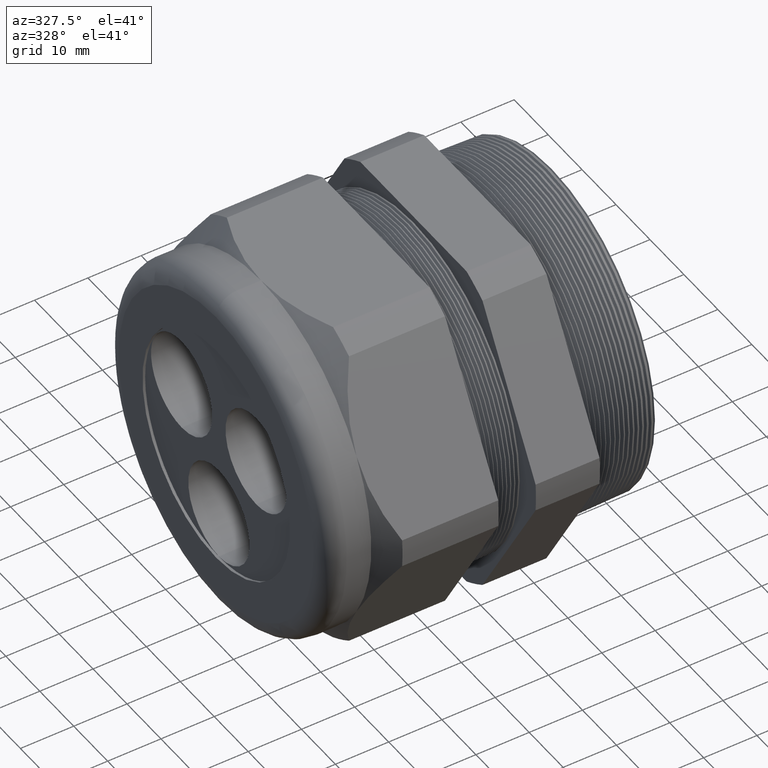
[diagram: clean part render]
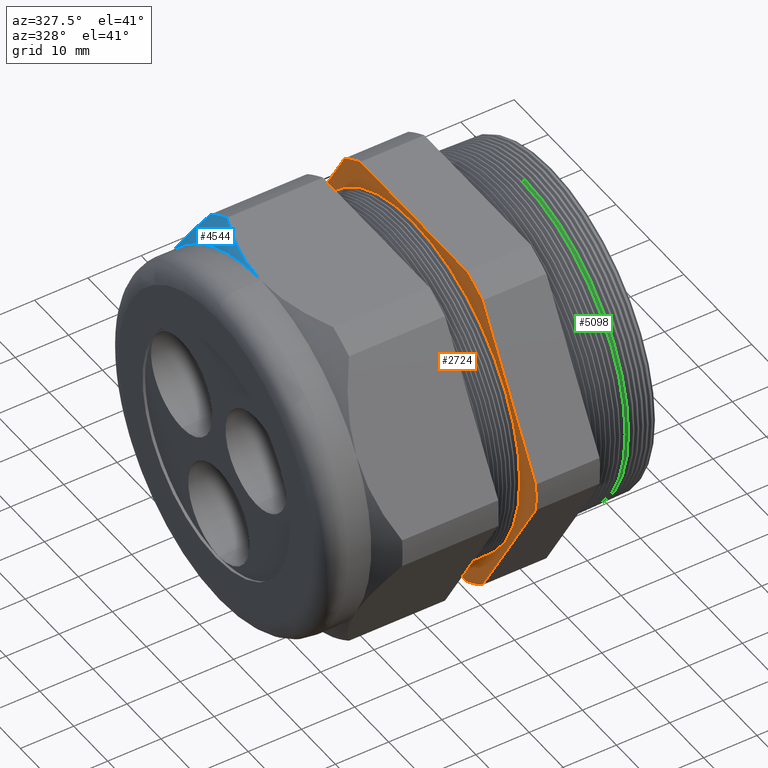
[diagram: same view with three faces highlighted in distinct colors, each labeled with its STEP entity id]
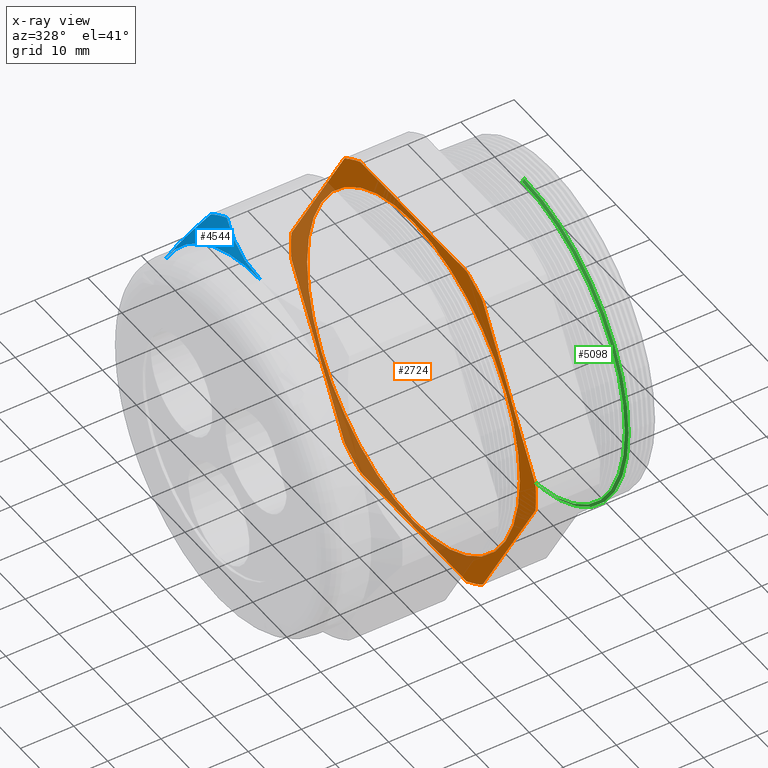
[diagram: x-ray of the same camera — body ghosted, the three highlighted faces saturated]
A machine part, auxiliary view with three faces highlighted in distinct colors.
The next image is the same camera in x-ray (body ghosted, the three faces saturated) — at least one of them is partly hidden behind the body in this view.
Their STEP definitions:

[orange] entity #2724 — the highlighted planar face has unit normal (-1, 0, 0).
#373 = ORIENTED_EDGE ( 'NONE', *, *, #4996, .T. ) ;
#386 = ORIENTED_EDGE ( 'NONE', *, *, #4957, .T. ) ;
#1143 = DIRECTION ( 'NONE',  ( 0.0000000000000000000, 0.0000000000000000000, 1.000000000000000000 ) ) ;
#1144 = DIRECTION ( 'NONE',  ( -1.000000000000000000, 0.0000000000000000000, 0.0000000000000000000 ) ) ;
#1145 = CARTESIAN_POINT ( 'NONE',  ( -0.7824400000000001400, 2.560000000000000100, 0.0000000000000000000 ) ) ;
#1146 = AXIS2_PLACEMENT_3D ( 'NONE', #1145, #1144, #1143 ) ;
#1147 = PLANE ( 'NONE',  #1146 ) ;
#1148 = FACE_OUTER_BOUND ( 'NONE', #1701, .T. ) ;
#1149 = FACE_BOUND ( 'NONE', #2185, .T. ) ;
#1271 = ORIENTED_EDGE ( 'NONE', *, *, #5229, .T. ) ;
#1646 = ORIENTED_EDGE ( 'NONE', *, *, #5273, .T. ) ;
#1701 = EDGE_LOOP ( 'NONE', ( #1646, #1271, #386, #373, #4523, #4526, #4529, #4527, #4521, #4519, #4517, #4518 ) ) ;
#2116 = CARTESIAN_POINT ( 'NONE',  ( -0.7824399999999999100, 1.509880605217353400E-016, -1.232763185394561100 ) ) ;
#2134 = CARTESIAN_POINT ( 'NONE',  ( -0.7824399999999999100, 0.0000000000000000000, 1.232763185394561100 ) ) ;
#2151 = ORIENTED_EDGE ( 'NONE', *, *, #4608, .T. ) ;
#2185 = EDGE_LOOP ( 'NONE', ( #2188, #2151 ) ) ;
#2188 = ORIENTED_EDGE ( 'NONE', *, *, #5320, .T. ) ;
#2202 = DIRECTION ( 'NONE',  ( 0.0000000000000000000, 0.0000000000000000000, -1.000000000000000000 ) ) ;
#2203 = DIRECTION ( 'NONE',  ( 1.000000000000000000, 0.0000000000000000000, 0.0000000000000000000 ) ) ;
#2204 = CARTESIAN_POINT ( 'NONE',  ( -0.7824399999999999100, 0.0000000000000000000, 0.0000000000000000000 ) ) ;
#2205 = AXIS2_PLACEMENT_3D ( 'NONE', #2204, #2203, #2202 ) ;
#2206 = CIRCLE ( 'NONE', #2205, 1.232763185394561100 ) ;
#2724 = ADVANCED_FACE ( 'NONE', ( #1149, #1148 ), #1147, .T. ) ;
#2745 = CARTESIAN_POINT ( 'NONE',  ( -0.7824400000000001400, -0.6166625008868302800, -1.280000000000000000 ) ) ;
#2750 = CARTESIAN_POINT ( 'NONE',  ( -0.7824400000000001400, 0.6166625008868305000, -1.279999999999999800 ) ) ;
#2796 = CARTESIAN_POINT ( 'NONE',  ( -0.7824400000000001400, 1.416843767287496500, -0.1059546086707606900 ) ) ;
#2807 = DIRECTION ( 'NONE',  ( 0.0000000000000000000, -1.000000000000000000, 0.0000000000000000000 ) ) ;
#2808 = VECTOR ( 'NONE', #2807, 39.37007874015748100 ) ;
#2809 = CARTESIAN_POINT ( 'NONE',  ( -0.7824400000000001400, 2.560000000000000100, -1.280000000000000000 ) ) ;
#2810 = LINE ( 'NONE', #2809, #2808 ) ;
#2844 = DIRECTION ( 'NONE',  ( 0.0000000000000000000, -0.4999999999999998300, -0.8660254037844388200 ) ) ;
#2845 = VECTOR ( 'NONE', #2844, 39.37007874015748100 ) ;
#2846 = CARTESIAN_POINT ( 'NONE',  ( -0.7824400000000001400, 1.748512516844080900, 0.4685125168440814600 ) ) ;
#2852 = LINE ( 'NONE', #2846, #2845 ) ;
#2853 = CARTESIAN_POINT ( 'NONE',  ( -0.7824400000000001400, 0.8001812664006662200, -1.174045391329238800 ) ) ;
#2898 = DIRECTION ( 'NONE',  ( 0.0000000000000000000, 0.0000000000000000000, 1.000000000000000000 ) ) ;
#2899 = DIRECTION ( 'NONE',  ( -1.000000000000000000, 0.0000000000000000000, 0.0000000000000000000 ) ) ;
#2900 = CARTESIAN_POINT ( 'NONE',  ( -0.7824400000000001400, 0.0000000000000000000, 0.0000000000000000000 ) ) ;
#2901 = AXIS2_PLACEMENT_3D ( 'NONE', #2900, #2899, #2898 ) ;
#2906 = CIRCLE ( 'NONE', #2901, 1.420799999999999800 ) ;
#3207 = DIRECTION ( 'NONE',  ( 0.0000000000000000000, -0.5000000000000000000, 0.8660254037844386000 ) ) ;
#3208 = VECTOR ( 'NONE', #3207, 39.37007874015748100 ) ;
#3209 = CARTESIAN_POINT ( 'NONE',  ( -0.7824400000000001400, -0.4685125168440810200, -1.748512516844081400 ) ) ;
#3210 = LINE ( 'NONE', #3209, #3208 ) ;
#3230 = CARTESIAN_POINT ( 'NONE',  ( -0.7824400000000001400, -1.416843767287496500, -0.1059546086707604700 ) ) ;
#3233 = CARTESIAN_POINT ( 'NONE',  ( -0.7824400000000001400, -0.8001812664006662200, 1.174045391329239200 ) ) ;
#3244 = DIRECTION ( 'NONE',  ( 0.0000000000000000000, 0.4999999999999994400, 0.8660254037844389300 ) ) ;
#3245 = VECTOR ( 'NONE', #3244, 39.37007874015748100 ) ;
#3246 = CARTESIAN_POINT ( 'NONE',  ( -0.7824400000000001400, -0.4685125168440826300, 1.748512516844079600 ) ) ;
#3247 = LINE ( 'NONE', #3246, #3245 ) ;
#3248 = DIRECTION ( 'NONE',  ( 0.0000000000000000000, 0.0000000000000000000, 1.000000000000000000 ) ) ;
#3249 = DIRECTION ( 'NONE',  ( -1.000000000000000000, 0.0000000000000000000, 0.0000000000000000000 ) ) ;
#3250 = CARTESIAN_POINT ( 'NONE',  ( -0.7824400000000001400, 0.0000000000000000000, 0.0000000000000000000 ) ) ;
#3251 = AXIS2_PLACEMENT_3D ( 'NONE', #3250, #3249, #3248 ) ;
#3252 = CIRCLE ( 'NONE', #3251, 1.420799999999999800 ) ;
#3253 = CARTESIAN_POINT ( 'NONE',  ( -0.7824400000000001400, -1.416843767287496500, 0.1059546086707598600 ) ) ;
#3271 = DIRECTION ( 'NONE',  ( 0.0000000000000000000, 0.0000000000000000000, 1.000000000000000000 ) ) ;
#3272 = DIRECTION ( 'NONE',  ( -1.000000000000000000, 0.0000000000000000000, 0.0000000000000000000 ) ) ;
#3273 = CARTESIAN_POINT ( 'NONE',  ( -0.7824400000000001400, 0.0000000000000000000, 0.0000000000000000000 ) ) ;
#3274 = AXIS2_PLACEMENT_3D ( 'NONE', #3273, #3272, #3271 ) ;
#3275 = CIRCLE ( 'NONE', #3274, 1.420799999999999800 ) ;
#3315 = DIRECTION ( 'NONE',  ( 0.0000000000000000000, 0.0000000000000000000, 1.000000000000000000 ) ) ;
#3316 = DIRECTION ( 'NONE',  ( -1.000000000000000000, 0.0000000000000000000, 0.0000000000000000000 ) ) ;
#3317 = CARTESIAN_POINT ( 'NONE',  ( -0.7824400000000001400, 0.0000000000000000000, 0.0000000000000000000 ) ) ;
#3318 = AXIS2_PLACEMENT_3D ( 'NONE', #3317, #3316, #3315 ) ;
#3319 = CIRCLE ( 'NONE', #3318, 1.420799999999999800 ) ;
#3321 = CARTESIAN_POINT ( 'NONE',  ( -0.7824400000000001400, 0.6166625008868301700, 1.280000000000000000 ) ) ;
#3322 = CARTESIAN_POINT ( 'NONE',  ( -0.7824400000000001400, -0.6166625008868306100, 1.279999999999999800 ) ) ;
#3341 = DIRECTION ( 'NONE',  ( 0.0000000000000000000, 1.000000000000000000, 0.0000000000000000000 ) ) ;
#3342 = VECTOR ( 'NONE', #3341, 39.37007874015748100 ) ;
#3343 = CARTESIAN_POINT ( 'NONE',  ( -0.7824400000000001400, 2.560000000000000100, 1.280000000000000000 ) ) ;
#3344 = LINE ( 'NONE', #3343, #3342 ) ;
#3345 = CARTESIAN_POINT ( 'NONE',  ( -0.7824400000000001400, 0.8001812664006661100, 1.174045391329238800 ) ) ;
#3346 = DIRECTION ( 'NONE',  ( 0.0000000000000000000, 0.0000000000000000000, 1.000000000000000000 ) ) ;
#3347 = DIRECTION ( 'NONE',  ( -1.000000000000000000, 0.0000000000000000000, 0.0000000000000000000 ) ) ;
#3348 = CARTESIAN_POINT ( 'NONE',  ( -0.7824400000000001400, 0.0000000000000000000, 0.0000000000000000000 ) ) ;
#3349 = AXIS2_PLACEMENT_3D ( 'NONE', #3348, #3347, #3346 ) ;
#3350 = CIRCLE ( 'NONE', #3349, 1.420800000000000100 ) ;
#3405 = DIRECTION ( 'NONE',  ( 0.0000000000000000000, 0.4999999999999998900, -0.8660254037844386000 ) ) ;
#3406 = VECTOR ( 'NONE', #3405, 39.37007874015748900 ) ;
#3407 = CARTESIAN_POINT ( 'NONE',  ( -0.7824400000000001400, 1.748512516844080900, -0.4685125168440816300 ) ) ;
#3408 = LINE ( 'NONE', #3407, #3406 ) ;
#3411 = CARTESIAN_POINT ( 'NONE',  ( -0.7824400000000001400, 1.416843767287496500, 0.1059546086707610400 ) ) ;
#3460 = CARTESIAN_POINT ( 'NONE',  ( -0.7824399999999999100, 0.0000000000000000000, 0.0000000000000000000 ) ) ;
#3516 = DIRECTION ( 'NONE',  ( 0.0000000000000000000, 0.0000000000000000000, -1.000000000000000000 ) ) ;
#3517 = DIRECTION ( 'NONE',  ( 1.000000000000000000, 0.0000000000000000000, 0.0000000000000000000 ) ) ;
#3518 = AXIS2_PLACEMENT_3D ( 'NONE', #3460, #3517, #3516 ) ;
#3519 = CIRCLE ( 'NONE', #3518, 1.232763185394561100 ) ;
#3603 = CARTESIAN_POINT ( 'NONE',  ( -0.7824400000000001400, -0.8001812664006651100, -1.174045391329239900 ) ) ;
#3640 = DIRECTION ( 'NONE',  ( 0.0000000000000000000, 0.0000000000000000000, 1.000000000000000000 ) ) ;
#3641 = DIRECTION ( 'NONE',  ( -1.000000000000000000, 0.0000000000000000000, 0.0000000000000000000 ) ) ;
#3642 = CARTESIAN_POINT ( 'NONE',  ( -0.7824400000000001400, 0.0000000000000000000, 0.0000000000000000000 ) ) ;
#3643 = AXIS2_PLACEMENT_3D ( 'NONE', #3642, #3641, #3640 ) ;
#3644 = CIRCLE ( 'NONE', #3643, 1.420800000000000100 ) ;
#4517 = ORIENTED_EDGE ( 'NONE', *, *, #5232, .T. ) ;
#4518 = ORIENTED_EDGE ( 'NONE', *, *, #5213, .T. ) ;
#4519 = ORIENTED_EDGE ( 'NONE', *, *, #5201, .T. ) ;
#4521 = ORIENTED_EDGE ( 'NONE', *, *, #5172, .T. ) ;
#4523 = ORIENTED_EDGE ( 'NONE', *, *, #4942, .T. ) ;
#4526 = ORIENTED_EDGE ( 'NONE', *, *, #5393, .T. ) ;
#4527 = ORIENTED_EDGE ( 'NONE', *, *, #5171, .T. ) ;
#4529 = ORIENTED_EDGE ( 'NONE', *, *, #5157, .T. ) ;
#4558 = VERTEX_POINT ( 'NONE', #2134 ) ;
#4571 = VERTEX_POINT ( 'NONE', #2116 ) ;
#4608 = EDGE_CURVE ( 'NONE', #4571, #4558, #2206, .T. ) ;
#4907 = VERTEX_POINT ( 'NONE', #2750 ) ;
#4909 = VERTEX_POINT ( 'NONE', #2745 ) ;
#4942 = EDGE_CURVE ( 'NONE', #4907, #4909, #2810, .T. ) ;
#4948 = VERTEX_POINT ( 'NONE', #2796 ) ;
#4951 = VERTEX_POINT ( 'NONE', #2853 ) ;
#4957 = EDGE_CURVE ( 'NONE', #4948, #4951, #2852, .T. ) ;
#4996 = EDGE_CURVE ( 'NONE', #4951, #4907, #2906, .T. ) ;
#5157 = EDGE_CURVE ( 'NONE', #5378, #5178, #3210, .T. ) ;
#5167 = VERTEX_POINT ( 'NONE', #3253 ) ;
#5171 = EDGE_CURVE ( 'NONE', #5178, #5167, #3252, .T. ) ;
#5172 = EDGE_CURVE ( 'NONE', #5167, #5183, #3247, .T. ) ;
#5178 = VERTEX_POINT ( 'NONE', #3230 ) ;
#5183 = VERTEX_POINT ( 'NONE', #3233 ) ;
#5201 = EDGE_CURVE ( 'NONE', #5183, #5209, #3275, .T. ) ;
#5209 = VERTEX_POINT ( 'NONE', #3322 ) ;
#5211 = VERTEX_POINT ( 'NONE', #3321 ) ;
#5213 = EDGE_CURVE ( 'NONE', #5211, #5231, #3319, .T. ) ;
#5229 = EDGE_CURVE ( 'NONE', #5269, #4948, #3350, .T. ) ;
#5231 = VERTEX_POINT ( 'NONE', #3345 ) ;
#5232 = EDGE_CURVE ( 'NONE', #5209, #5211, #3344, .T. ) ;
#5269 = VERTEX_POINT ( 'NONE', #3411 ) ;
#5273 = EDGE_CURVE ( 'NONE', #5231, #5269, #3408, .T. ) ;
#5320 = EDGE_CURVE ( 'NONE', #4558, #4571, #3519, .T. ) ;
#5378 = VERTEX_POINT ( 'NONE', #3603 ) ;
#5393 = EDGE_CURVE ( 'NONE', #4909, #5378, #3644, .T. ) ;

[blue] entity #4544 — the highlighted conical surface has half-angle 45 deg.
#1164 = DIRECTION ( 'NONE',  ( 0.0000000000000000000, 0.0000000000000000000, -1.000000000000000000 ) ) ;
#1165 = DIRECTION ( 'NONE',  ( 1.000000000000000000, 0.0000000000000000000, 0.0000000000000000000 ) ) ;
#1166 = CARTESIAN_POINT ( 'NONE',  ( -1.768492000000000200, 0.0000000000000000000, 0.0000000000000000000 ) ) ;
#1167 = AXIS2_PLACEMENT_3D ( 'NONE', #1166, #1165, #1164 ) ;
#1172 = CIRCLE ( 'NONE', #1167, 1.420799999999999800 ) ;
#1240 = CARTESIAN_POINT ( 'NONE',  ( -1.909291999999999500, 0.0000000000000000000, 1.280000000000000000 ) ) ;
#1241 = CARTESIAN_POINT ( 'NONE',  ( -1.909291999999999500, 0.02672213078802234200, 1.280000000000000000 ) ) ;
#1242 = CARTESIAN_POINT ( 'NONE',  ( -1.908446342151620900, 0.05356854984720004600, 1.280000000000000000 ) ) ;
#1243 = CARTESIAN_POINT ( 'NONE',  ( -1.905123383299628200, 0.1067381207527689800, 1.280000000000000000 ) ) ;
#1244 = CARTESIAN_POINT ( 'NONE',  ( -1.902648074829802000, 0.1331626350846556200, 1.280000000000000000 ) ) ;
#1245 = CARTESIAN_POINT ( 'NONE',  ( -1.892905966014041500, 0.2119800413602719000, 1.279999999999999800 ) ) ;
#1246 = CARTESIAN_POINT ( 'NONE',  ( -1.883320795785701900, 0.2639163659910923100, 1.279999999999999800 ) ) ;
#1247 = CARTESIAN_POINT ( 'NONE',  ( -1.858730573868090800, 0.3667216529074577300, 1.279999999999999800 ) ) ;
#1248 = CARTESIAN_POINT ( 'NONE',  ( -1.843728725011120500, 0.4175912459415935300, 1.279999999999999800 ) ) ;
#1249 = CARTESIAN_POINT ( 'NONE',  ( -1.817760468264914900, 0.4932131617928015000, 1.279999999999999800 ) ) ;
#1250 = CARTESIAN_POINT ( 'NONE',  ( -1.808517794523389500, 0.5183220260809854300, 1.279999999999999800 ) ) ;
#1251 = CARTESIAN_POINT ( 'NONE',  ( -1.789160968299050800, 0.5678795841928971900, 1.280000000000000000 ) ) ;
#1252 = CARTESIAN_POINT ( 'NONE',  ( -1.779027095716830800, 0.5923894763832372500, 1.280000000000000000 ) ) ;
#1253 = CARTESIAN_POINT ( 'NONE',  ( -1.768492000000000000, 0.6166625008868301700, 1.280000000000000000 ) ) ;
#1255 = B_SPLINE_CURVE_WITH_KNOTS ( 'NONE', 3,
 ( #1253, #1252, #1251, #1250, #1249, #1248, #1247, #1246, #1245, #1244, #1243, #1242, #1241, #1240 ),
 .UNSPECIFIED., .F., .F.,
 ( 4, 2, 2, 2, 2, 2, 4 ),
 ( 0.02514202277783124400, 0.02714289194006080900, 0.02914376110229037100, 0.03314549942674950600, 0.03714723775120863700, 0.03914810691343820200, 0.04114897607566777400 ),
 .UNSPECIFIED. ) ;
#1279 = CARTESIAN_POINT ( 'NONE',  ( -1.768492000000000000, 0.6166625008868301700, 1.280000000000000000 ) ) ;
#2078 = DIRECTION ( 'NONE',  ( 0.0000000000000000000, 0.0000000000000000000, 1.000000000000000000 ) ) ;
#2079 = DIRECTION ( 'NONE',  ( 1.000000000000000000, 0.0000000000000000000, 0.0000000000000000000 ) ) ;
#2080 = AXIS2_PLACEMENT_3D ( 'NONE', #2087, #2079, #2078 ) ;
#2081 = CONICAL_SURFACE ( 'NONE', #2080, 1.280000000000000000, 0.7853981633974501700 ) ;
#2082 = FACE_OUTER_BOUND ( 'NONE', #4545, .T. ) ;
#2087 = CARTESIAN_POINT ( 'NONE',  ( -1.909291999999999500, 0.0000000000000000000, 0.0000000000000000000 ) ) ;
#2231 = CARTESIAN_POINT ( 'NONE',  ( -1.909291999999999500, 0.0000000000000000000, 1.280000000000000000 ) ) ;
#2264 = CARTESIAN_POINT ( 'NONE',  ( -1.909291999999999500, 1.108512516844081500, 0.6400000000000000100 ) ) ;
#2301 = DIRECTION ( 'NONE',  ( 0.0000000000000000000, 0.0000000000000000000, -1.000000000000000000 ) ) ;
#2302 = DIRECTION ( 'NONE',  ( 1.000000000000000000, 0.0000000000000000000, 0.0000000000000000000 ) ) ;
#2303 = CARTESIAN_POINT ( 'NONE',  ( -1.909291999999999500, 0.0000000000000000000, 0.0000000000000000000 ) ) ;
#2304 = AXIS2_PLACEMENT_3D ( 'NONE', #2303, #2302, #2301 ) ;
#2305 = CIRCLE ( 'NONE', #2304, 1.279999999999999800 ) ;
#3045 = CARTESIAN_POINT ( 'NONE',  ( -1.859065044692606900, 0.9257579459085123500, 0.9565402021758557800 ) ) ;
#3046 = CARTESIAN_POINT ( 'NONE',  ( -1.895822934946115300, 1.002877599663059000, 0.8229650436108604300 ) ) ;
#3047 = CARTESIAN_POINT ( 'NONE',  ( -1.909291999999998700, 1.055162852598234600, 0.7324043290405472000 ) ) ;
#3048 = CARTESIAN_POINT ( 'NONE',  ( -1.909291999999999500, 1.108512516844081500, 0.6400000000000000100 ) ) ;
#3051 = B_SPLINE_CURVE_WITH_KNOTS ( 'NONE', 3,
 ( #3048, #3047, #3046, #3045, #3108, #3107, #3106, #3105 ),
 .UNSPECIFIED., .F., .F.,
 ( 4, 2, 2, 4 ),
 ( 0.01607611893436946400, 0.02410854275338653000, 0.02812475466289506400, 0.03214096657240359700 ),
 .UNSPECIFIED. ) ;
#3052 = CARTESIAN_POINT ( 'NONE',  ( -1.768492000000000200, 0.8001812664006661100, 1.174045391329238800 ) ) ;
#3105 = CARTESIAN_POINT ( 'NONE',  ( -1.768492000000000200, 0.8001812664006661100, 1.174045391329238800 ) ) ;
#3106 = CARTESIAN_POINT ( 'NONE',  ( -1.789807280376754400, 0.8247366352740291800, 1.131514244841979000 ) ) ;
#3107 = CARTESIAN_POINT ( 'NONE',  ( -1.809379497512201500, 0.8496599179459881600, 1.088345852962745400 ) ) ;
#3108 = CARTESIAN_POINT ( 'NONE',  ( -1.844076898263659100, 0.9002675725821838200, 1.000690823880955800 ) ) ;
#4053 = EDGE_CURVE ( 'NONE', #5072, #4087, #1172, .T. ) ;
#4076 = EDGE_CURVE ( 'NONE', #4087, #4629, #1255, .T. ) ;
#4087 = VERTEX_POINT ( 'NONE', #1279 ) ;
#4544 = ADVANCED_FACE ( 'NONE', ( #2082 ), #2081, .T. ) ;
#4545 = EDGE_LOOP ( 'NONE', ( #4575, #4576, #4572, #4573 ) ) ;
#4572 = ORIENTED_EDGE ( 'NONE', *, *, #4053, .F. ) ;
#4573 = ORIENTED_EDGE ( 'NONE', *, *, #5075, .F. ) ;
#4575 = ORIENTED_EDGE ( 'NONE', *, *, #4656, .T. ) ;
#4576 = ORIENTED_EDGE ( 'NONE', *, *, #4076, .F. ) ;
#4629 = VERTEX_POINT ( 'NONE', #2231 ) ;
#4644 = VERTEX_POINT ( 'NONE', #2264 ) ;
#4656 = EDGE_CURVE ( 'NONE', #4644, #4629, #2305, .T. ) ;
#5072 = VERTEX_POINT ( 'NONE', #3052 ) ;
#5075 = EDGE_CURVE ( 'NONE', #4644, #5072, #3051, .T. ) ;

[green] entity #5098 — the highlighted conical surface has half-angle 58.5 deg.
#183 = EDGE_CURVE ( 'NONE', #4674, #295, #721, .T. ) ;
#288 = EDGE_CURVE ( 'NONE', #4669, #4674, #875, .T. ) ;
#295 = VERTEX_POINT ( 'NONE', #924 ) ;
#296 = EDGE_CURVE ( 'NONE', #298, #295, #923, .T. ) ;
#298 = VERTEX_POINT ( 'NONE', #919 ) ;
#622 = CARTESIAN_POINT ( 'NONE',  ( 0.02152926432092473800, 0.0000000000000000000, -1.189948790814587800 ) ) ;
#717 = DIRECTION ( 'NONE',  ( 0.0000000000000000000, 0.0000000000000000000, -1.000000000000000000 ) ) ;
#718 = DIRECTION ( 'NONE',  ( -1.000000000000000000, 0.0000000000000000000, 0.0000000000000000000 ) ) ;
#719 = CARTESIAN_POINT ( 'NONE',  ( 0.03465424916220278400, 0.0000000000000000000, 0.0000000000000000000 ) ) ;
#720 = AXIS2_PLACEMENT_3D ( 'NONE', #719, #718, #717 ) ;
#721 = CIRCLE ( 'NONE', #720, 1.211366819471371600 ) ;
#875 = LINE ( 'NONE', #622, #937 ) ;
#919 = CARTESIAN_POINT ( 'NONE',  ( 0.02152926432092473800, 0.0000000000000000000, 1.189948790814587800 ) ) ;
#920 = DIRECTION ( 'NONE',  ( 0.5224985647159344800, 1.044183048100723000E-016, 0.8526401643541010600 ) ) ;
#921 = VECTOR ( 'NONE', #920, 39.37007874015748100 ) ;
#922 = CARTESIAN_POINT ( 'NONE',  ( 0.02152926432092473800, 1.457266977820348400E-016, 1.189948790814587800 ) ) ;
#923 = LINE ( 'NONE', #922, #921 ) ;
#924 = CARTESIAN_POINT ( 'NONE',  ( 0.03465424916220278400, 0.0000000000000000000, 1.211366819471371600 ) ) ;
#936 = DIRECTION ( 'NONE',  ( 0.5224985647159344800, 0.0000000000000000000, -0.8526401643541010600 ) ) ;
#937 = VECTOR ( 'NONE', #936, 39.37007874015748100 ) ;
#2332 = CARTESIAN_POINT ( 'NONE',  ( 0.03465424916220278400, 1.483496498058924900E-016, -1.211366819471371600 ) ) ;
#2338 = CARTESIAN_POINT ( 'NONE',  ( 0.02152926432092473800, 1.470784374845643800E-016, -1.189948790814587800 ) ) ;
#3122 = DIRECTION ( 'NONE',  ( 0.0000000000000000000, 0.0000000000000000000, -1.000000000000000000 ) ) ;
#3123 = DIRECTION ( 'NONE',  ( 1.000000000000000000, 0.0000000000000000000, 0.0000000000000000000 ) ) ;
#3124 = CARTESIAN_POINT ( 'NONE',  ( 0.02152926432092473800, 0.0000000000000000000, 0.0000000000000000000 ) ) ;
#3125 = AXIS2_PLACEMENT_3D ( 'NONE', #3124, #3123, #3122 ) ;
#3126 = CONICAL_SURFACE ( 'NONE', #3125, 1.189948790814587800, 1.021017612416699600 ) ;
#3127 = FACE_OUTER_BOUND ( 'NONE', #5182, .T. ) ;
#3128 = DIRECTION ( 'NONE',  ( 0.0000000000000000000, 0.0000000000000000000, -1.000000000000000000 ) ) ;
#3129 = DIRECTION ( 'NONE',  ( 1.000000000000000000, 0.0000000000000000000, 0.0000000000000000000 ) ) ;
#3130 = CARTESIAN_POINT ( 'NONE',  ( 0.02152926432092473800, 0.0000000000000000000, 0.0000000000000000000 ) ) ;
#3131 = AXIS2_PLACEMENT_3D ( 'NONE', #3130, #3129, #3128 ) ;
#3132 = CIRCLE ( 'NONE', #3131, 1.189948790814587800 ) ;
#4669 = VERTEX_POINT ( 'NONE', #2338 ) ;
#4674 = VERTEX_POINT ( 'NONE', #2332 ) ;
#5097 = EDGE_CURVE ( 'NONE', #298, #4669, #3132, .T. ) ;
#5098 = ADVANCED_FACE ( 'NONE', ( #3127 ), #3126, .T. ) ;
#5165 = ORIENTED_EDGE ( 'NONE', *, *, #288, .T. ) ;
#5170 = ORIENTED_EDGE ( 'NONE', *, *, #183, .T. ) ;
#5182 = EDGE_LOOP ( 'NONE', ( #5186, #5187, #5165, #5170 ) ) ;
#5186 = ORIENTED_EDGE ( 'NONE', *, *, #296, .F. ) ;
#5187 = ORIENTED_EDGE ( 'NONE', *, *, #5097, .T. ) ;